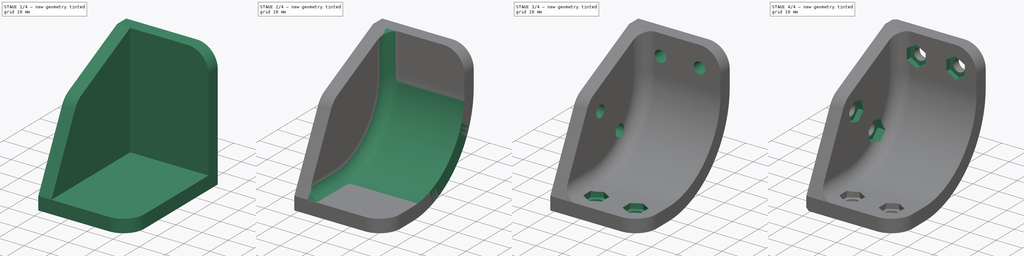
[diagram: build sequence overview — one tinted view per stage of 4, left to right]
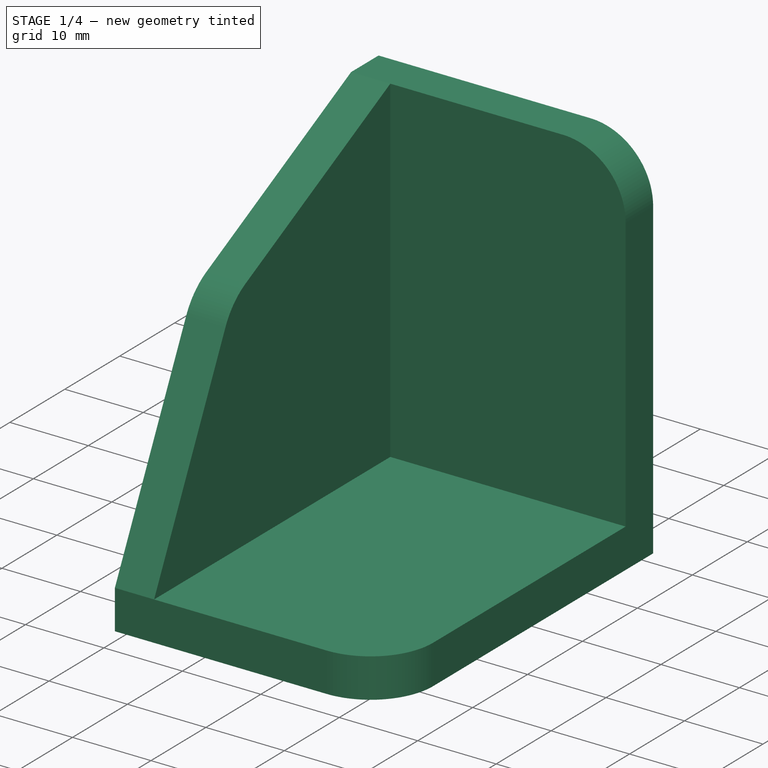
[diagram: stage 1 of 4 — iso view after this stage's code; geometry added in this stage tinted green]
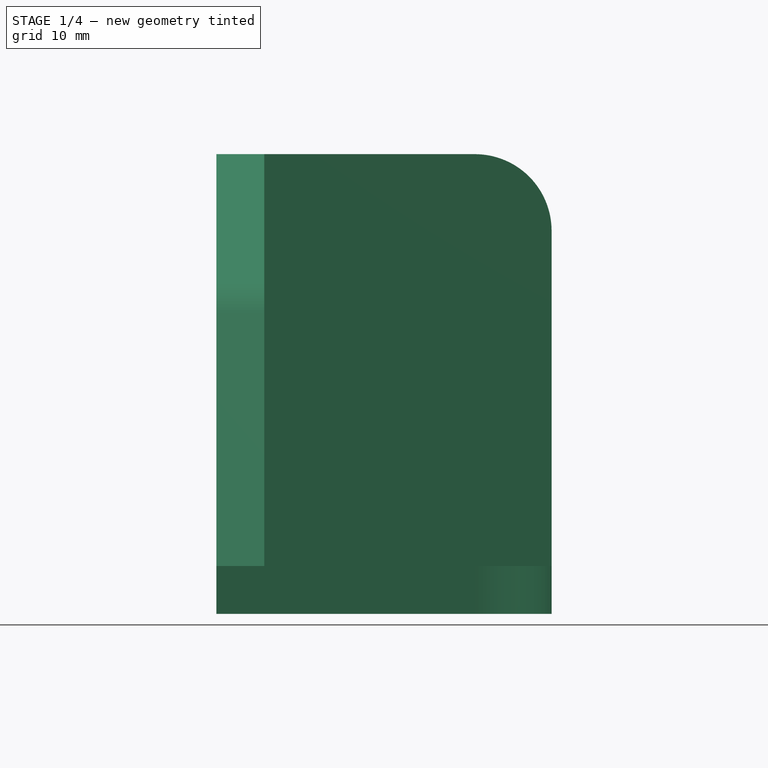
[diagram: stage 1 of 4 — front view after this stage's code; geometry added in this stage tinted green]
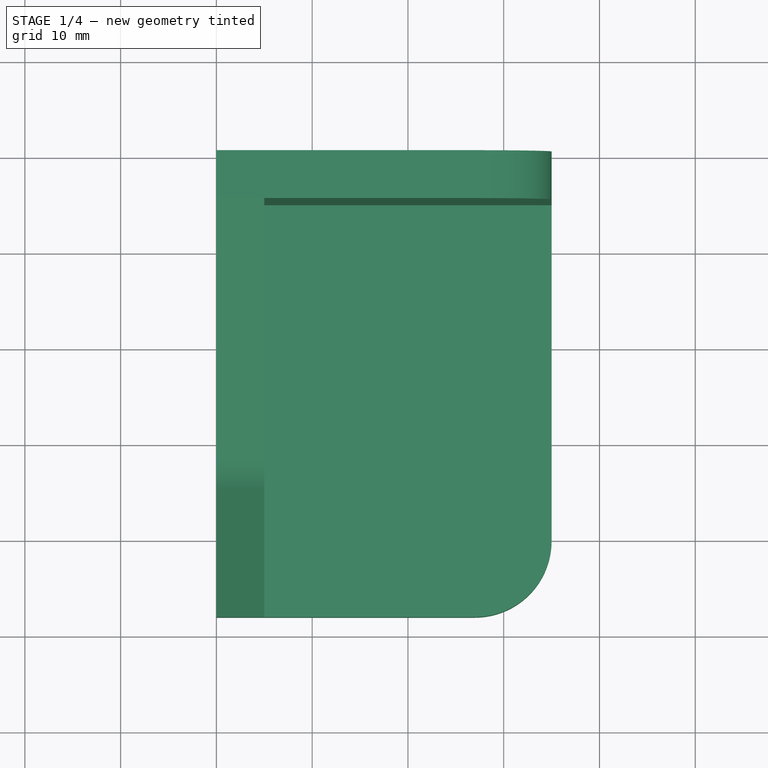
[diagram: stage 1 of 4 — top view after this stage's code; geometry added in this stage tinted green]
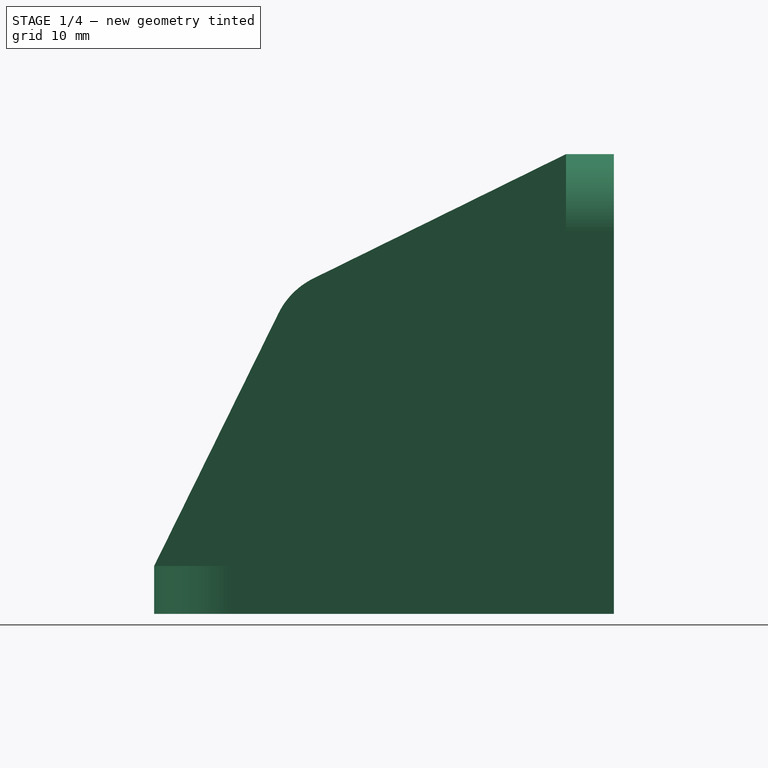
[diagram: stage 1 of 4 — right view after this stage's code; geometry added in this stage tinted green]
FCSTD DOCUMENT  (FreeCAD 0.20R29410 (Git))
Label: Corner Bend Bracket
License: All rights reserved
LicenseURL: http://en.wikipedia.org/wiki/All_rights_reserved
objects: Sketcher::SketchObject×10, PartDesign::Plane×4, PartDesign::Pocket×4, PartDesign::Pad×3, PartDesign::Hole×3, Spreadsheet::Sheet×2, PartDesign::Fillet×2, PartDesign::Chamfer×1, PartDesign::Body×1
note: 41 computed .brp shape members not serialized (recipe doc carries the construction recipe); baked Part::Feature solids carry a one-line shape summary decoded from their .brp
EXTERNAL_REF file=Tailbox.FCStd obj=Spreadsheet

FEATURE [Sketcher::SketchObject] Sketch
  FullyConstrained = true
  MapMode = 5
  Placement = pos=(0,0,0) rot=(0.57735,0.57735,0.57735;2.0944rad)
  Support = -> [YZ_Plane]
  expr: Constraints[12] = <<dims>>.BoltWallR
  expr: Constraints[20] = <<dims>>.BendR
  expr: Constraints[29] = <<dims>>.FirstHoleInset - Tailbox#<<dims>>.thickness
  expr: Constraints[3] = <<dims>>.BoltBendInset + <<dims>>.BoltWallR
  expr: Constraints[5] = <<dims>>.WallThick
  expr: Constraints[8] = <<dims>>.HoleDist
  sketch-geometry (11):
    g0: LineSegment StartX=0 StartY=48 StartZ=0 EndX=-5 EndY=48 EndZ=0
    g1: LineSegment StartX=-48 StartY=5 StartZ=0 EndX=-48 EndY=0 EndZ=0
    g2: LineSegment StartX=-48 StartY=0 StartZ=0 EndX=0 EndY=0 EndZ=0
    g3: LineSegment StartX=-17.2365 StartY=17.2365 StartZ=0 EndX=-27.8431 EndY=27.8431 EndZ=0
    g4: ArcOfCircle CenterX=-27.8431 CenterY=27.8431 CenterZ=0 NormalX=0 NormalY=0 NormalZ=1 AngleXU=0 Radius=8 StartAngle=2.02809 EndAngle=2.6843
    g5: LineSegment StartX=-48 StartY=5 StartZ=0 EndX=-35.0211 EndY=31.3753 EndZ=0
    g6: LineSegment StartX=-31.3753 StartY=35.0211 StartZ=0 EndX=-5 EndY=48 EndZ=0
    g7: LineSegment StartX=0 StartY=0 StartZ=0 EndX=0 EndY=48 EndZ=0
    g8: ArcOfCircle CenterX=-33.5 CenterY=33.5 CenterZ=0 NormalX=0 NormalY=0 NormalZ=1 AngleXU=0 Radius=33.5 StartAngle=4.71239 EndAngle=6.28319
    g9: LineSegment StartX=-17.2365 StartY=17.2365 StartZ=0 EndX=-9.81192 EndY=9.81192 EndZ=0
    g10: LineSegment StartX=-9.81192 StartY=9.81192 StartZ=0 EndX=0 EndY=0 EndZ=0
  constraints (30):
    c: PointOnObject(g1,g-1)
    c: Vertical(g1)
    c: Coincident(g1,g2)
    c: DistanceX(g2,g2) = 48
    c: Equal(g1,g0)
    c: DistanceY(g1,g1) = 5
    c: Coincident(g5,g1)
    c: Coincident(g6,g0)
    c: Distance(g3) = 15
    c: Tangent(g5,g4) = 1.5708
    c: Tangent(g6,g4) = 1.5708
    c: Coincident(g3,g4)
    c: Radius(g4) = 8
    c: Coincident(g7,g0)
    c: Perpendicular(g0,g7)
    c: Vertical(g7)
    c: Coincident(g2,g-1)
    c: Equal(g2,g7)
    c: Tangent(g8,g7) = -1.5708
    c: Tangent(g8,g2) = -1.5708
    c: Radius(g8) = 33.5
    c: Coincident(g9,g3)
    c: PointOnObject(g9,g8)
    c: Coincident(g10,g9)
    c: Coincident(g10,g2)
    c: Coincident(g2,g7)
    c: Parallel(g10,g9)
    c: Parallel(g9,g3)
    c: Angle(g10,g2) = 0.785398
    c: Distance(g9) = 10.5
FEATURE [Spreadsheet::Sheet] Spreadsheet  label="dims"
  cells = A1=FaceAngle; B1(FaceAngle)=0; A2=HoleDist; B2(HoleDist)=15; A3=FirstHoleInset; B3(FirstHoleInset)==Tailbox#<<dims>>.bolt_inset; A4=HexWidth; B4(HexWidth)=7.05; A5=MinWallThick; B5(MinWallThick)=3; A6=HexDepth; B6(HexDepth)=2; A7=WallThick; B7(WallThick)==MinWallThick + HexDepth; A8=EdgeLength; B8(EdgeLength)==Tailbox#<<dims>>.corner_radius + 2 * Tailbox#<<dims>>.corner_bolt_offset; A9=BoltWallR; B9(BoltWallR)=8; A10=CornerCut; B10(CornerCut)=1; A11=BoltBendInset; B11(BoltBendInset)==Tailbox#<<dims>>.corner_radius + Tailbox#<<dims>>.corner_bolt_offset; A12=BendR; B12(BendR)==Tailbox#<<dims>>.corner_radius - Tailbox#<<dims>>.thickness; A13=BoltEdgeInset; B13(BoltEdgeInset)==Tailbox#<<dims>>.bolt_inset
FEATURE [PartDesign::Pad] Pad  label="PanelSide"
  Direction = (1,-2e-16,3e-16)
  Length = 5
  Length2 = 10
  Placement = pos=(0,0,0) rot=(0.57735,0.57735,0.57735;2.0944rad)
  Profile = -> Sketch
  ReferenceAxis = -> Sketch [N_Axis]
  Type = 0
  expr: Length = <<dims>>.WallThick
FEATURE [Sketcher::SketchObject] Sketch001
  FullyConstrained = true
  MapMode = 5
  Support = -> [XY_Plane]
  expr: Constraints[10] = <<dims>>.BoltWallR
  expr: Constraints[13] = -<<dims>>.BoltBendInset
  expr: Constraints[14] = <<dims>>.BoltEdgeInset
  expr: Constraints[9] = <<dims>>.HoleDist
  sketch-geometry (7):
    g0: LineSegment StartX=0 StartY=0 StartZ=0 EndX=0 EndY=-48 EndZ=0
    g1: LineSegment StartX=35 StartY=0 StartZ=0 EndX=0 EndY=0 EndZ=0
    g2: LineSegment StartX=0 StartY=-40 StartZ=0 EndX=12 EndY=-40 EndZ=0
    g3: LineSegment StartX=12 StartY=-40 StartZ=0 EndX=27 EndY=-40 EndZ=0
    g4: ArcOfCircle CenterX=27 CenterY=-40 CenterZ=0 NormalX=0 NormalY=0 NormalZ=1 AngleXU=0 Radius=8 StartAngle=4.71239 EndAngle=6.28319
    g5: LineSegment StartX=0 StartY=-48 StartZ=0 EndX=27 EndY=-48 EndZ=0
    g6: LineSegment StartX=35 StartY=-40 StartZ=0 EndX=35 EndY=0 EndZ=0
  constraints (19):
    c: Coincident(g-1,g0)
    c: PointOnObject(g0,g-2)
    c: PointOnObject(g1,g-1)
    c: Coincident(g1,g0)
    c: PointOnObject(g2,g0)
    c: Horizontal(g2)
    c: Coincident(g4,g3)
    c: Tangent(g6,g4) = -1.5708
    c: Tangent(g5,g4) = -1.5708
    c: Distance(g3) = 15
    c: Radius(g4) = 8
    c: Horizontal(g3)
    c: Coincident(g3,g2)
    c: DistanceY(g2) = -40
    c: DistanceX(g2,g2) = 12
    c: Coincident(g5,g0)
    c: Horizontal(g5)
    c: Coincident(g1,g6)
    c: Vertical(g6)
FEATURE [PartDesign::Pad] Pad001  label="BentSide1"
  BaseFeature = -> Pad
  Direction = (0,0,1)
  Length = 5
  Length2 = 10
  Placement = pos=(0,0,0) rot=(0.57735,0.57735,0.57735;2.0944rad)
  Profile = -> Sketch001
  ReferenceAxis = -> Sketch001 [N_Axis]
  Type = 0
  expr: Length = <<dims>>.WallThick
FEATURE [PartDesign::Plane] DatumPlane
  Length = 60
  MapMode = 5
  Placement = pos=(0,0,0) rot=(1,0,0;1.5708rad)
  ResizeMode = 0
  Support = -> [XZ_Plane]
  Width = 60
  expr: .AttachmentOffset.Rotation.Roll = -<<dims>>.FaceAngle
FEATURE [Sketcher::SketchObject] Sketch002
  FullyConstrained = true
  MapMode = 5
  Placement = pos=(0,0,0) rot=(1,0,0;1.5708rad)
  Support = -> [DatumPlane]
  expr: Constraints[10] = <<dims>>.HoleDist
  expr: Constraints[11] = <<dims>>.BoltWallR
  expr: Constraints[14] = <<dims>>.BoltEdgeInset
  expr: Constraints[15] = <<dims>>.BoltBendInset
  sketch-geometry (7):
    g0: LineSegment StartX=0 StartY=0 StartZ=0 EndX=0 EndY=48 EndZ=0
    g1: LineSegment StartX=0 StartY=48 StartZ=0 EndX=27 EndY=48 EndZ=0
    g2: LineSegment StartX=35 StartY=0 StartZ=0 EndX=0 EndY=0 EndZ=0
    g3: LineSegment StartX=0 StartY=40 StartZ=0 EndX=12 EndY=40 EndZ=0
    g4: LineSegment StartX=12 StartY=40 StartZ=0 EndX=27 EndY=40 EndZ=0
    g5: ArcOfCircle CenterX=27 CenterY=40 CenterZ=0 NormalX=0 NormalY=0 NormalZ=1 AngleXU=0 Radius=8 StartAngle=1e-16 EndAngle=1.5708
    g6: LineSegment StartX=35 StartY=40 StartZ=0 EndX=35 EndY=0 EndZ=0
  constraints (19):
    c: Coincident(g-1,g0)
    c: Vertical(g0)
    c: Coincident(g0,g1)
    c: Horizontal(g1)
    c: Coincident(g2,g0)
    c: Horizontal(g2)
    c: PointOnObject(g3,g0)
    c: Horizontal(g3)
    c: Coincident(g5,g4)
    c: Tangent(g6,g5) = 1.5708
    c: Distance(g4) = 15
    c: Radius(g5) = 8
    c: Horizontal(g4)
    c: Coincident(g3,g4)
    c: DistanceX(g3,g3) = 12
    c: DistanceY(g3) = 40
    c: Coincident(g6,g2)
    c: Tangent(g1,g5) = 1.5708
    c: Vertical(g6)
FEATURE [PartDesign::Pad] Pad002  label="BentSide2"
  BaseFeature = -> Pad001
  Direction = (0,-1,-2e-16)
  Length = 5
  Length2 = 10
  Placement = pos=(0,0,0) rot=(0.57735,0.57735,0.57735;2.0944rad)
  Profile = -> Sketch002
  ReferenceAxis = -> Sketch002 [N_Axis]
  Refine = true
  Type = 0
  expr: Length = <<dims>>.WallThick
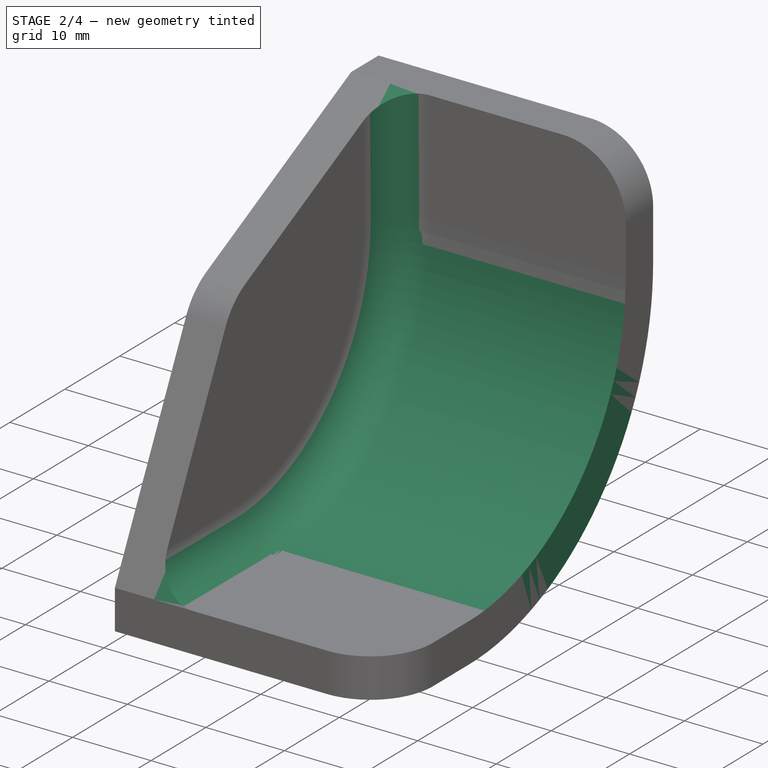
[diagram: stage 2 of 4 — iso view after this stage's code; geometry added in this stage tinted green]
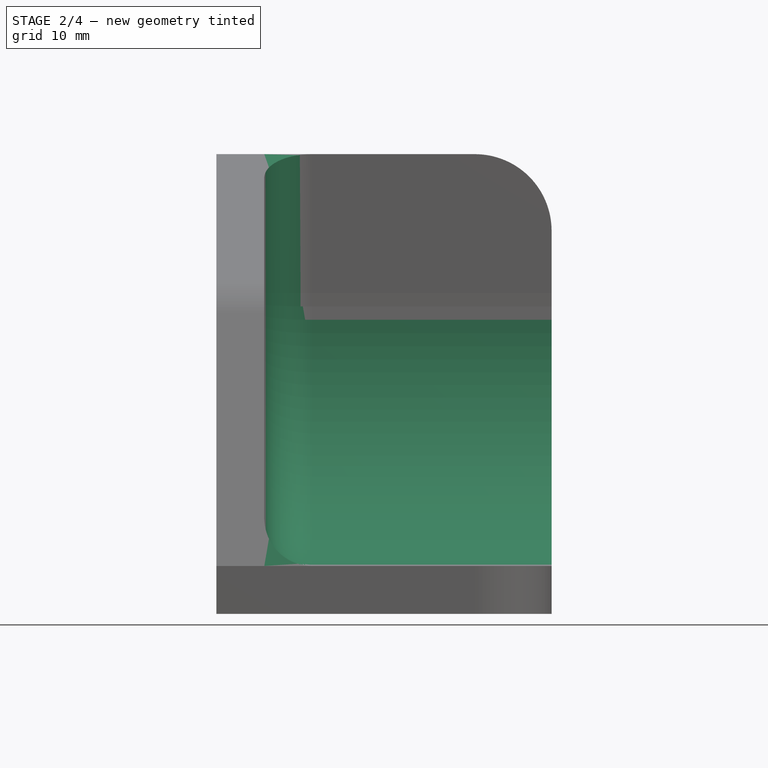
[diagram: stage 2 of 4 — front view after this stage's code; geometry added in this stage tinted green]
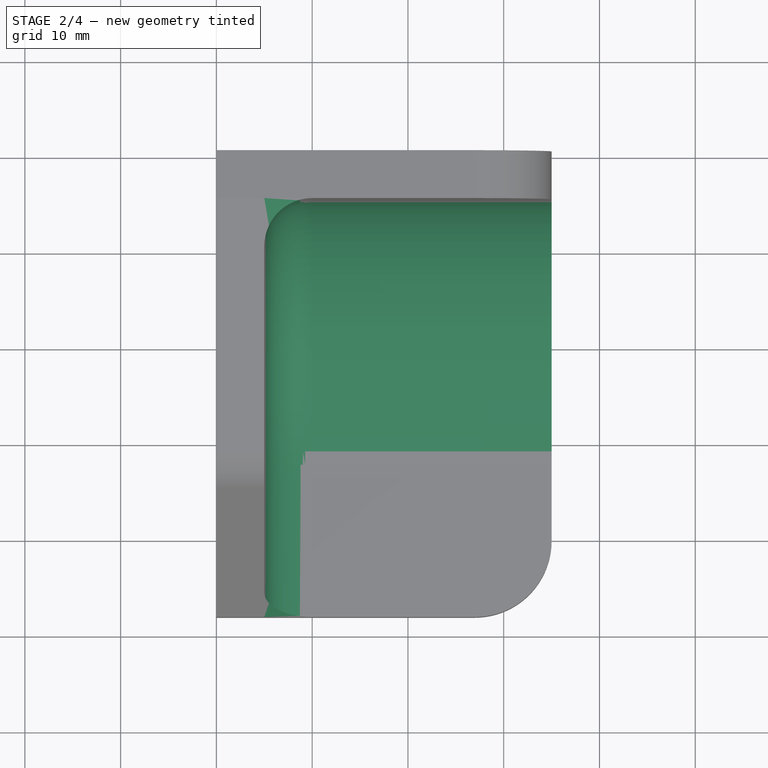
[diagram: stage 2 of 4 — top view after this stage's code; geometry added in this stage tinted green]
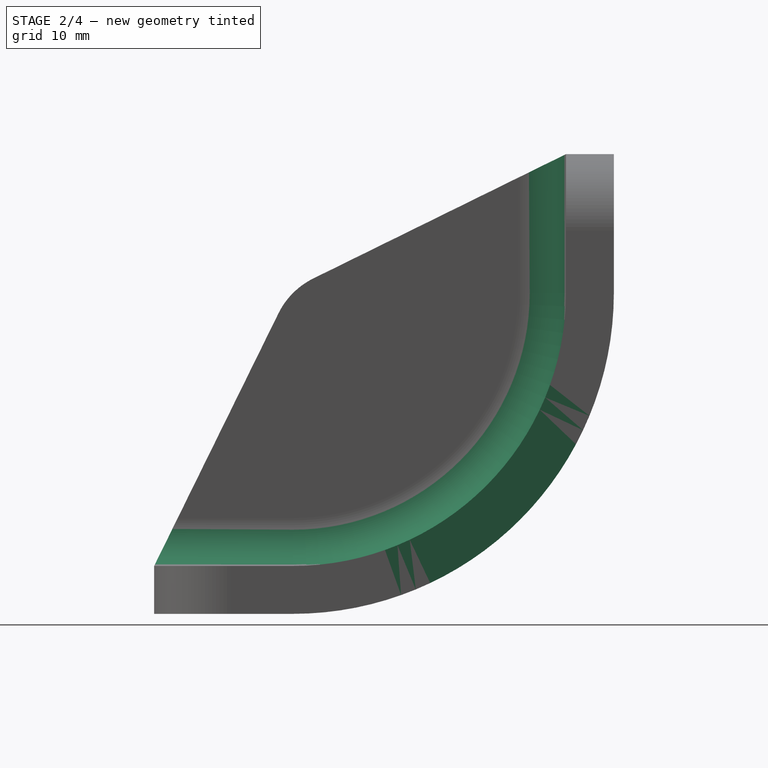
[diagram: stage 2 of 4 — right view after this stage's code; geometry added in this stage tinted green]
FEATURE [Sketcher::SketchObject] Sketch003
  FullyConstrained = false
  MapMode = 5
  Support = -> [XY_Plane]
  expr: Constraints[5] = <<dims>>.HoleDist
  expr: Constraints[7] = -<<dims>>.BoltBendInset
  expr: Constraints[8] = <<dims>>.BoltEdgeInset
  sketch-geometry (4):
    g0: Circle CenterX=12 CenterY=-40 CenterZ=0 NormalX=0 NormalY=0 NormalZ=1 AngleXU=0 Radius=1.4225
    g1: Circle CenterX=27 CenterY=-40 CenterZ=0 NormalX=0 NormalY=0 NormalZ=1 AngleXU=0 Radius=1.34335
    g2: LineSegment StartX=27 StartY=-40 StartZ=0 EndX=12 EndY=-40 EndZ=0
    g3: LineSegment StartX=0 StartY=-40 StartZ=0 EndX=12 EndY=-40 EndZ=0
  constraints (9):
    c: Coincident(g2,g1)
    c: Coincident(g2,g0)
    c: PointOnObject(g3,g-2)
    c: Coincident(g3,g0)
    c: Horizontal(g3)
    c: Distance(g2) = 15
    c: Horizontal(g2)
    c: DistanceY(g3) = -40
    c: DistanceX(g3,g3) = 12
FEATURE [Sketcher::SketchObject] Sketch005
  FullyConstrained = false
  MapMode = 5
  Placement = pos=(0,0,0) rot=(1,0,0;1.5708rad)
  Support = -> [DatumPlane]
  expr: Constraints[4] = <<dims>>.HoleDist
  expr: Constraints[6] = <<dims>>.BoltEdgeInset
  expr: Constraints[7] = <<dims>>.BoltBendInset
  sketch-geometry (4):
    g0: LineSegment StartX=0 StartY=40 StartZ=0 EndX=12 EndY=40 EndZ=0
    g1: LineSegment StartX=12 StartY=40 StartZ=0 EndX=27 EndY=40 EndZ=0
    g2: Circle CenterX=12 CenterY=40 CenterZ=0 NormalX=0 NormalY=0 NormalZ=1 AngleXU=0 Radius=2.79522
    g3: Circle CenterX=27 CenterY=40 CenterZ=0 NormalX=0 NormalY=0 NormalZ=1 AngleXU=0 Radius=3.40464
  constraints (9):
    c: PointOnObject(g0,g-2)
    c: Coincident(g2,g0)
    c: Coincident(g3,g1)
    c: Horizontal(g0)
    c: Distance(g1) = 15
    c: Horizontal(g1)
    c: DistanceX(g0,g0) = 12
    c: DistanceY(g0) = 40
    c: Coincident(g2,g1)
FEATURE [PartDesign::Plane] DatumPlane001
  AttachmentOffset = pos=(0,0,5) rot=(0,0,1;0rad)
  Length = 60
  MapMode = 5
  Placement = pos=(5,-1.1e-15,1.1e-15) rot=(0.57735,0.57735,0.57735;2.0944rad)
  ResizeMode = 0
  Support = -> [YZ_Plane]
  Width = 60
  expr: .AttachmentOffset.Base.z = <<dims>>.WallThick
FEATURE [PartDesign::Plane] DatumPlane002
  AttachmentOffset = pos=(0,0,5) rot=(0,0,1;0rad)
  Length = 60
  MapMode = 5
  Placement = pos=(0,-5,-1.1e-15) rot=(1,0,0;1.5708rad)
  ResizeMode = 0
  Support = -> [DatumPlane]
  Width = 60
  expr: .AttachmentOffset.Base.z = <<dims>>.WallThick
FEATURE [Sketcher::SketchObject] Sketch008
  FullyConstrained = true
  MapMode = 5
  Placement = pos=(0,-5,-1.1e-15) rot=(1,0,0;1.5708rad)
  Support = -> [DatumPlane002]
  expr: Constraints[40] = <<dims>>.HexWidth
  expr: Constraints[41] = <<dims>>.HoleDist
  expr: Constraints[43] = <<dims>>.BoltBendInset
  expr: Constraints[45] = <<dims>>.BoltEdgeInset
  sketch-geometry (16):
    g0: LineSegment StartX=12 StartY=40 StartZ=0 EndX=0 EndY=40 EndZ=0
    g1: LineSegment StartX=12 StartY=40 StartZ=0 EndX=27 EndY=40 EndZ=0
    g2: LineSegment StartX=12 StartY=35.9297 StartZ=0 EndX=15.525 EndY=37.9648 EndZ=0
    g3: LineSegment StartX=15.525 StartY=37.9648 StartZ=0 EndX=15.525 EndY=42.0352 EndZ=0
    g4: LineSegment StartX=15.525 StartY=42.0352 StartZ=0 EndX=12 EndY=44.0703 EndZ=0
    g5: LineSegment StartX=12 StartY=44.0703 StartZ=0 EndX=8.475 EndY=42.0352 EndZ=0
    g6: LineSegment StartX=8.475 StartY=42.0352 StartZ=0 EndX=8.475 EndY=37.9648 EndZ=0
    g7: LineSegment StartX=8.475 StartY=37.9648 StartZ=0 EndX=12 EndY=35.9297 EndZ=0
    g8: Circle CenterX=12 CenterY=40 CenterZ=0 NormalX=0 NormalY=0 NormalZ=1 AngleXU=0 Radius=4.07032
    g9: LineSegment StartX=27 StartY=35.9297 StartZ=0 EndX=30.525 EndY=37.9648 EndZ=0
    g10: LineSegment StartX=30.525 StartY=37.9648 StartZ=0 EndX=30.525 EndY=42.0352 EndZ=0
    g11: LineSegment StartX=30.525 StartY=42.0352 StartZ=0 EndX=27 EndY=44.0703 EndZ=0
    g12: LineSegment StartX=27 StartY=44.0703 StartZ=0 EndX=23.475 EndY=42.0352 EndZ=0
    g13: LineSegment StartX=23.475 StartY=42.0352 StartZ=0 EndX=23.475 EndY=37.9648 EndZ=0
    g14: LineSegment StartX=23.475 StartY=37.9648 StartZ=0 EndX=27 EndY=35.9297 EndZ=0
    g15: Circle CenterX=27 CenterY=40 CenterZ=0 NormalX=0 NormalY=0 NormalZ=1 AngleXU=0 Radius=4.07032
  constraints (39):
    c: PointOnObject(g0,g-2)
    c: Horizontal(g0)
    c: Coincident(g2,g3)
    c: Coincident(g3,g4)
    c: Coincident(g4,g5)
    c: Coincident(g5,g6)
    c: Coincident(g6,g7)
    c: Coincident(g7,g2)
    c: Equal(g2, g3-g7) x5
    c: PointOnObject(g2,g8)
    c: PointOnObject(g3,g8)
    c: PointOnObject(g4,g8)
    c: PointOnObject(g5,g8)
    c: PointOnObject(g6,g8)
    c: PointOnObject(g7,g8)
    c: Coincident(g9,g10)
    c: Coincident(g10,g11)
    c: Coincident(g11,g12)
    c: Coincident(g12,g13)
    c: Coincident(g13,g14)
    c: Coincident(g14,g9)
    c: Equal(g9, g10-g14) x5
    c: PointOnObject(g9,g15)
    c: PointOnObject(g10,g15)
    c: PointOnObject(g11,g15)
    c: PointOnObject(g12,g15)
    c: PointOnObject(g13,g15)
    c: PointOnObject(g14,g15)
    c: Coincident(g15,g1)
    c: Perpendicular(g1,g13)
    c: Perpendicular(g1,g3)
    c: Equal(g8,g15)
    c: Distance(g11,g9) = 7.05
    c: Distance(g1) = 15
    c: Coincident(g0,g1)
    c: DistanceY(g0) = 40
    c: Coincident(g8,g0)
    c: DistanceX(g0,g0) = 12
    c: Horizontal(g1)
FEATURE [PartDesign::Plane] DatumPlane003
  AttachmentOffset = pos=(0,0,5) rot=(0,0,1;0rad)
  Length = 60
  MapMode = 5
  Placement = pos=(0,0,5) rot=(0,0,1;0rad)
  ResizeMode = 0
  Support = -> [XY_Plane]
  Width = 60
  expr: .AttachmentOffset.Base.z = <<dims>>.WallThick
FEATURE [Sketcher::SketchObject] Sketch006
  FullyConstrained = true
  MapMode = 5
  Placement = pos=(0,0,5) rot=(0,0,1;0rad)
  Support = -> [DatumPlane003]
  expr: Constraints[37] = <<dims>>.HoleDist
  expr: Constraints[41] = <<dims>>.HexWidth
  expr: Constraints[44] = -<<dims>>.BoltBendInset
  expr: Constraints[45] = <<dims>>.BoltEdgeInset
  sketch-geometry (16):
    g0: LineSegment StartX=12 StartY=-44.0703 StartZ=0 EndX=15.525 EndY=-42.0352 EndZ=0
    g1: LineSegment StartX=15.525 StartY=-42.0352 StartZ=0 EndX=15.525 EndY=-37.9648 EndZ=0
    g2: LineSegment StartX=15.525 StartY=-37.9648 StartZ=0 EndX=12 EndY=-35.9297 EndZ=0
    g3: LineSegment StartX=12 StartY=-35.9297 StartZ=0 EndX=8.475 EndY=-37.9648 EndZ=0
    g4: LineSegment StartX=8.475 StartY=-37.9648 StartZ=0 EndX=8.475 EndY=-42.0352 EndZ=0
    g5: LineSegment StartX=8.475 StartY=-42.0352 StartZ=0 EndX=12 EndY=-44.0703 EndZ=0
    g6: Circle CenterX=12 CenterY=-40 CenterZ=0 NormalX=0 NormalY=0 NormalZ=1 AngleXU=0 Radius=4.07032
    g7: LineSegment StartX=30.525 StartY=-42.0352 StartZ=0 EndX=30.525 EndY=-37.9648 EndZ=0
    g8: LineSegment StartX=30.525 StartY=-37.9648 StartZ=0 EndX=27 EndY=-35.9297 EndZ=0
    g9: LineSegment StartX=27 StartY=-35.9297 StartZ=0 EndX=23.475 EndY=-37.9648 EndZ=0
    g10: LineSegment StartX=23.475 StartY=-37.9648 StartZ=0 EndX=23.475 EndY=-42.0352 EndZ=0
    g11: LineSegment StartX=23.475 StartY=-42.0352 StartZ=0 EndX=27 EndY=-44.0703 EndZ=0
    g12: LineSegment StartX=27 StartY=-44.0703 StartZ=0 EndX=30.525 EndY=-42.0352 EndZ=0
    g13: Circle CenterX=27 CenterY=-40 CenterZ=0 NormalX=0 NormalY=0 NormalZ=1 AngleXU=0 Radius=4.07032
    g14: LineSegment StartX=12 StartY=-40 StartZ=0 EndX=0 EndY=-40 EndZ=0
    g15: LineSegment StartX=12 StartY=-40 StartZ=0 EndX=27 EndY=-40 EndZ=0
  constraints (39):
    c: Coincident(g0,g1)
    c: Coincident(g1,g2)
    c: Coincident(g2,g3)
    c: Coincident(g3,g4)
    c: Coincident(g4,g5)
    c: Coincident(g5,g0)
    c: Equal(g0, g1-g5) x5
    c: PointOnObject(g0,g6)
    c: PointOnObject(g1,g6)
    c: PointOnObject(g2,g6)
    c: PointOnObject(g3,g6)
    c: PointOnObject(g4,g6)
    c: PointOnObject(g5,g6)
    c: Coincident(g7,g8)
    c: Coincident(g8,g9)
    c: Coincident(g9,g10)
    c: Coincident(g10,g11)
    c: Coincident(g11,g12)
    c: Coincident(g12,g7)
    c: Equal(g7, g8-g12) x5
    c: PointOnObject(g7,g13)
    c: PointOnObject(g8,g13)
    c: PointOnObject(g9,g13)
    c: PointOnObject(g10,g13)
    c: PointOnObject(g11,g13)
    c: PointOnObject(g12,g13)
    c: PointOnObject(g14,g-2)
    c: Horizontal(g14)
    c: Coincident(g15,g13)
    c: Distance(g15) = 15
    c: Perpendicular(g15,g10)
    c: Perpendicular(g15,g1)
    c: Equal(g6,g13)
    c: Distance(g7,g9) = 7.05
    c: Coincident(g14,g6)
    c: Coincident(g15,g6)
    c: DistanceY(g14) = -40
    c: DistanceX(g14,g14) = 12
    c: Horizontal(g15)
FEATURE [PartDesign::Fillet] Fillet003
  Base = -> Pad002 [Edge8]
  BaseFeature = -> Pad002
  Placement = pos=(0,0,0) rot=(0.57735,0.57735,0.57735;2.0944rad)
  Radius = 28.5
  SupportTransform = false
  UseAllEdges = false
  expr: Radius = <<dims>>.BendR - <<dims>>.WallThick
FEATURE [Sketcher::SketchObject] Sketch009
  FullyConstrained = true
  MapMode = 5
  Placement = pos=(0,0,0) rot=(0.57735,0.57735,0.57735;2.0944rad)
  Support = -> [YZ_Plane]
  expr: Constraints[6] = <<dims>>.BendR
  sketch-geometry (3):
    g0: ArcOfCircle CenterX=-33.5 CenterY=33.5 CenterZ=0 NormalX=0 NormalY=0 NormalZ=1 AngleXU=0 Radius=33.5 StartAngle=4.71239 EndAngle=6.28319
    g1: LineSegment StartX=0 StartY=33.5 StartZ=0 EndX=0 EndY=0 EndZ=0
    g2: LineSegment StartX=-33.5 StartY=0 StartZ=0 EndX=0 EndY=0 EndZ=0
  constraints (7):
    c: PointOnObject(g0,g-1)
    c: Coincident(g1,g-1)
    c: Coincident(g2,g-1)
    c: Vertical(g1)
    c: Tangent(g1,g0) = 1.5708
    c: Tangent(g2,g0) = -1.5708
    c: Radius(g0) = 33.5
FEATURE [PartDesign::Pocket] Pocket003
  BaseFeature = -> Fillet003
  Direction = (-1,2e-16,-3e-16)
  Length = 5
  Length2 = 5
  Placement = pos=(0,0,0) rot=(0.57735,0.57735,0.57735;2.0944rad)
  Profile = -> Sketch009
  ReferenceAxis = -> Sketch009 [N_Axis]
  Reversed = true
  Type = 1
FEATURE [PartDesign::Fillet] Fillet
  Base = -> Pocket003 [Edge14]
  BaseFeature = -> Pocket003
  Placement = pos=(0,0,0) rot=(0.57735,0.57735,0.57735;2.0944rad)
  Radius = 5
  SupportTransform = false
  UseAllEdges = false
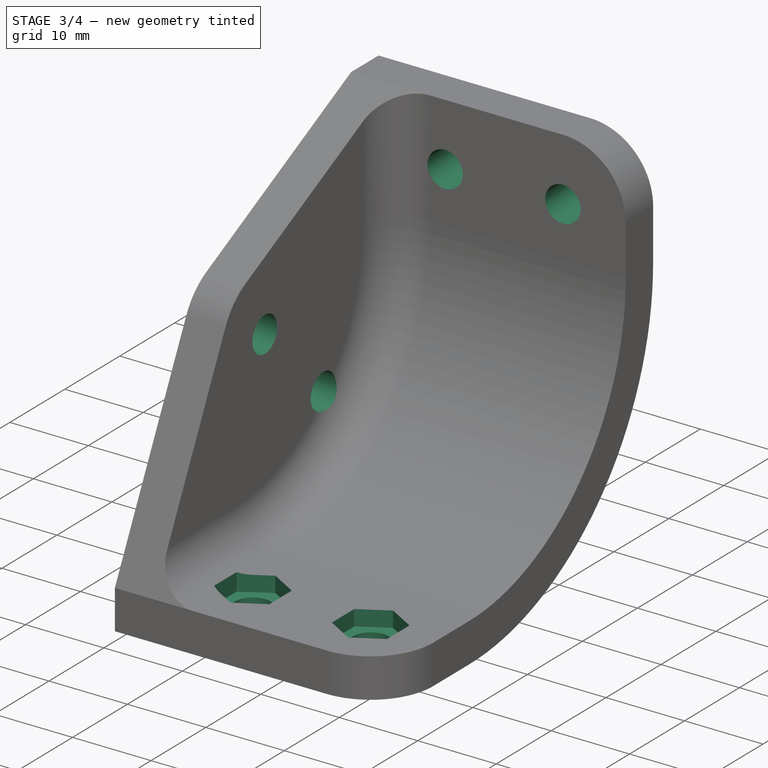
[diagram: stage 3 of 4 — iso view after this stage's code; geometry added in this stage tinted green]
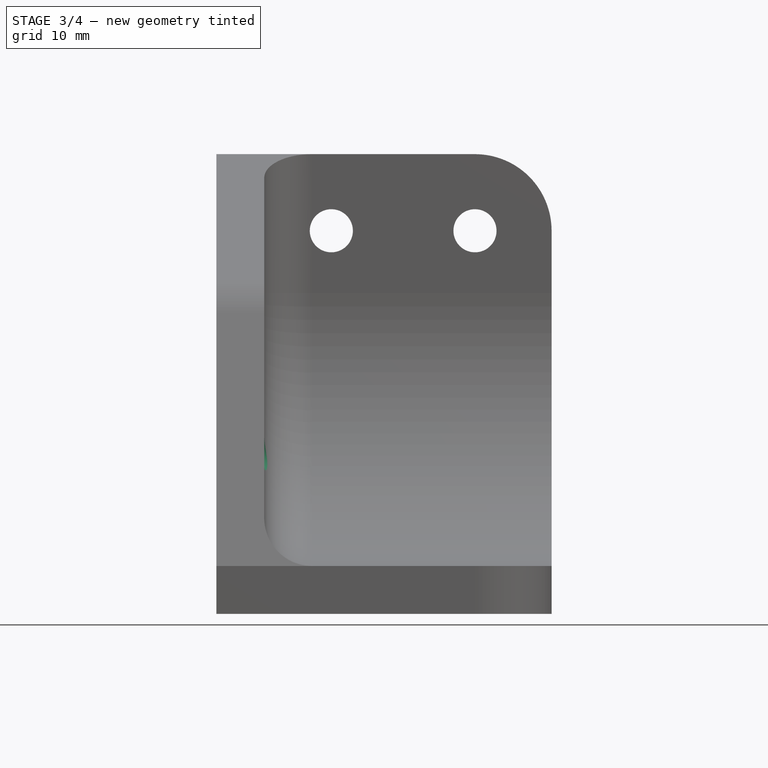
[diagram: stage 3 of 4 — front view after this stage's code; geometry added in this stage tinted green]
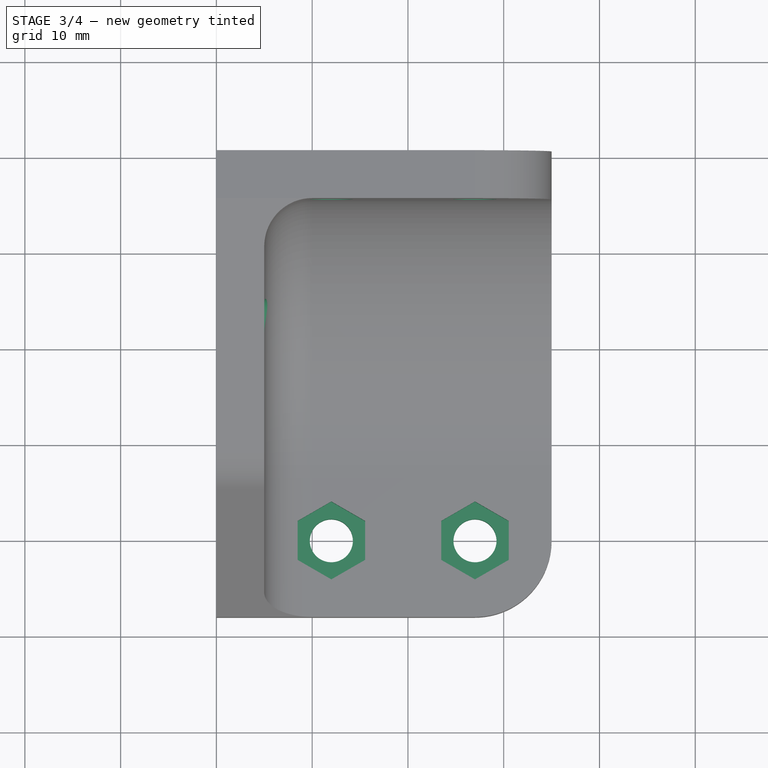
[diagram: stage 3 of 4 — top view after this stage's code; geometry added in this stage tinted green]
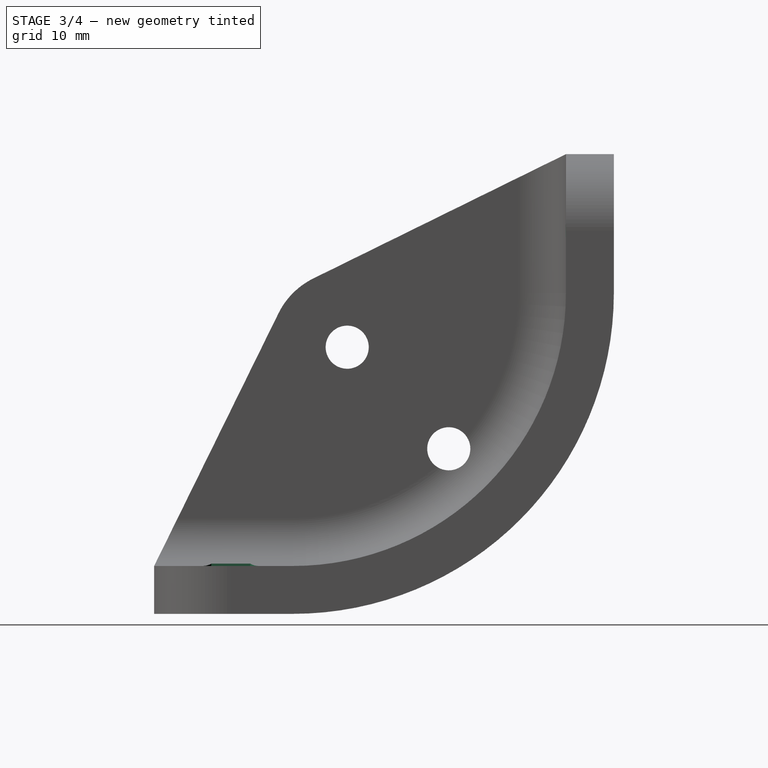
[diagram: stage 3 of 4 — right view after this stage's code; geometry added in this stage tinted green]
FEATURE [PartDesign::Hole] Hole
  BaseFeature = -> Fillet
  CustomThreadClearance = 0
  Depth = 83.6027
  DepthType = 1
  Diameter = 4.5
  DrillForDepth = false
  DrillPoint = 1
  DrillPointAngle = 118
  HoleCutCountersinkAngle = 90
  HoleCutCustomValues = false
  HoleCutDepth = 0
  HoleCutDiameter = 6.1
  HoleCutType = 0
  ModelThread = false
  Placement = pos=(0,0,0) rot=(0.57735,0.57735,0.57735;2.0944rad)
  Profile = -> Sketch003
  Reversed = true
  Tapered = false
  TaperedAngle = 90
  ThreadClass = 0
  ThreadDepth = 83.6027
  ThreadDepthType = 0
  ThreadDirection = 0
  ThreadFit = 0
  ThreadSize = 11
  ThreadType = 1
  Threaded = false
  UseCustomThreadClearance = false
FEATURE [Sketcher::SketchObject] Sketch004
  ExternalGeometry = -> [Hole]
  FullyConstrained = false
  MapMode = 5
  Placement = pos=(0,0,0) rot=(0.57735,0.57735,0.57735;2.0944rad)
  Support = -> [YZ_Plane]
  expr: Constraints[8] = <<dims>>.FirstHoleInset - Tailbox#<<dims>>.thickness
  expr: Constraints[9] = <<dims>>.HoleDist
  sketch-geometry (5):
    g0: Circle CenterX=-17.2365 CenterY=17.2365 CenterZ=0 NormalX=0 NormalY=0 NormalZ=1 AngleXU=0 Radius=3.15255
    g1: Circle CenterX=-27.8431 CenterY=27.8431 CenterZ=0 NormalX=0 NormalY=0 NormalZ=1 AngleXU=0 Radius=1.56795
    g2: LineSegment StartX=-17.2365 StartY=17.2365 StartZ=0 EndX=-27.8431 EndY=27.8431 EndZ=0
    g3: LineSegment StartX=0 StartY=0 StartZ=0 EndX=-9.81192 EndY=9.81192 EndZ=0
    g4: LineSegment StartX=-9.81192 StartY=9.81192 StartZ=0 EndX=-17.2365 EndY=17.2365 EndZ=0
  constraints (11):
    c: Coincident(g2,g1)
    c: Coincident(g3,g-1)
    c: Coincident(g4,g3)
    c: Coincident(g0,g2)
    c: Coincident(g0,g4)
    c: Parallel(g2,g4)
    c: Parallel(g4,g3)
    c: PointOnObject(g3,g-3)
    c: Distance(g4) = 10.5
    c: Distance(g2) = 15
    c: PointOnObject(g-3,g2)
FEATURE [PartDesign::Hole] Hole001
  BaseFeature = -> Hole
  CustomThreadClearance = 0
  Depth = 88.6705
  DepthType = 1
  Diameter = 4.5
  DrillForDepth = false
  DrillPoint = 1
  DrillPointAngle = 118
  HoleCutCountersinkAngle = 90
  HoleCutCustomValues = false
  HoleCutDepth = 0
  HoleCutDiameter = 6.1
  HoleCutType = 0
  ModelThread = false
  Placement = pos=(0,0,0) rot=(0.57735,0.57735,0.57735;2.0944rad)
  Profile = -> Sketch004
  Reversed = true
  Tapered = false
  TaperedAngle = 90
  ThreadClass = 0
  ThreadDepth = 88.6705
  ThreadDepthType = 0
  ThreadDirection = 0
  ThreadFit = 0
  ThreadSize = 11
  ThreadType = 1
  Threaded = false
  UseCustomThreadClearance = false
FEATURE [PartDesign::Hole] Hole002
  BaseFeature = -> Hole001
  CustomThreadClearance = 0
  Depth = 88.6705
  DepthType = 1
  Diameter = 4.5
  DrillForDepth = false
  DrillPoint = 1
  DrillPointAngle = 118
  HoleCutCountersinkAngle = 90
  HoleCutCustomValues = false
  HoleCutDepth = 0
  HoleCutDiameter = 6.1
  HoleCutType = 0
  ModelThread = false
  Placement = pos=(0,0,0) rot=(0.57735,0.57735,0.57735;2.0944rad)
  Profile = -> Sketch005
  Reversed = true
  Tapered = false
  TaperedAngle = 90
  ThreadClass = 0
  ThreadDepth = 88.6705
  ThreadDepthType = 0
  ThreadDirection = 0
  ThreadFit = 0
  ThreadSize = 11
  ThreadType = 1
  Threaded = false
  UseCustomThreadClearance = false
FEATURE [PartDesign::Pocket] Pocket
  BaseFeature = -> Hole002
  Direction = (0,0,-1)
  Length = 4
  Length2 = 5
  Midplane = true
  Placement = pos=(0,0,0) rot=(0.57735,0.57735,0.57735;2.0944rad)
  Profile = -> Sketch006
  Type = 0
  expr: Length = 2 * <<dims>>.HexDepth
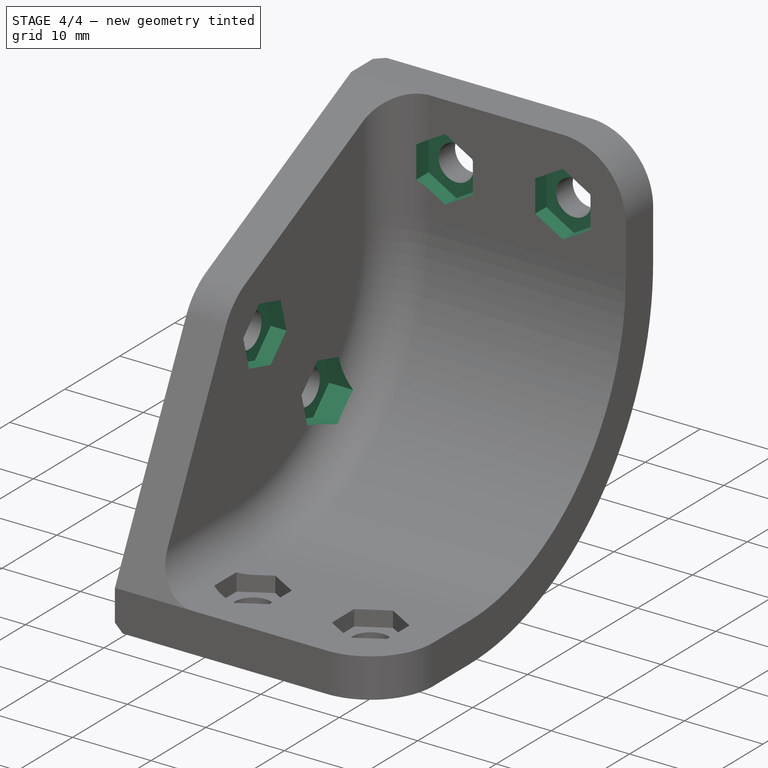
[diagram: stage 4 of 4 — iso view after this stage's code; geometry added in this stage tinted green]
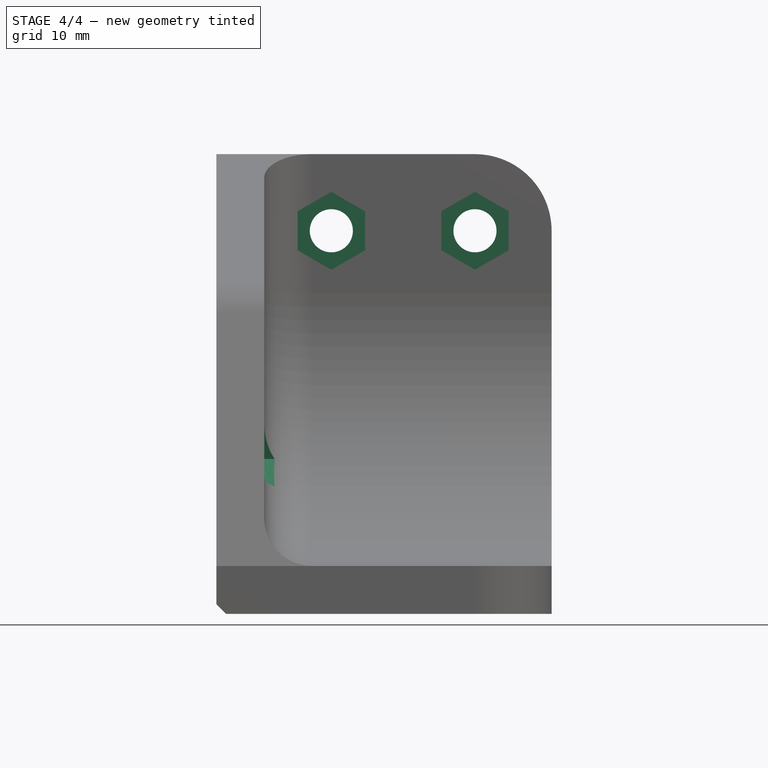
[diagram: stage 4 of 4 — front view after this stage's code; geometry added in this stage tinted green]
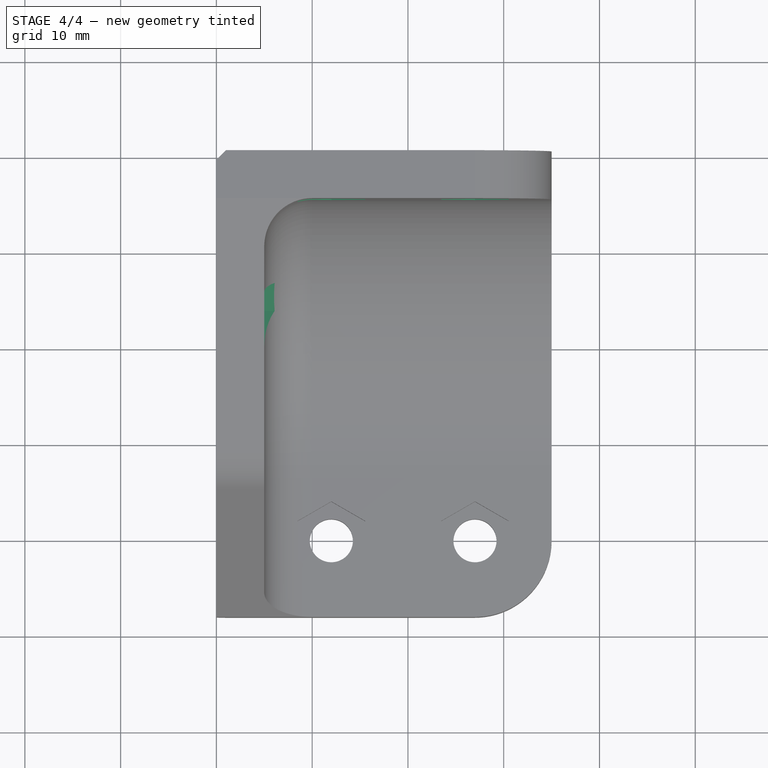
[diagram: stage 4 of 4 — top view after this stage's code; geometry added in this stage tinted green]
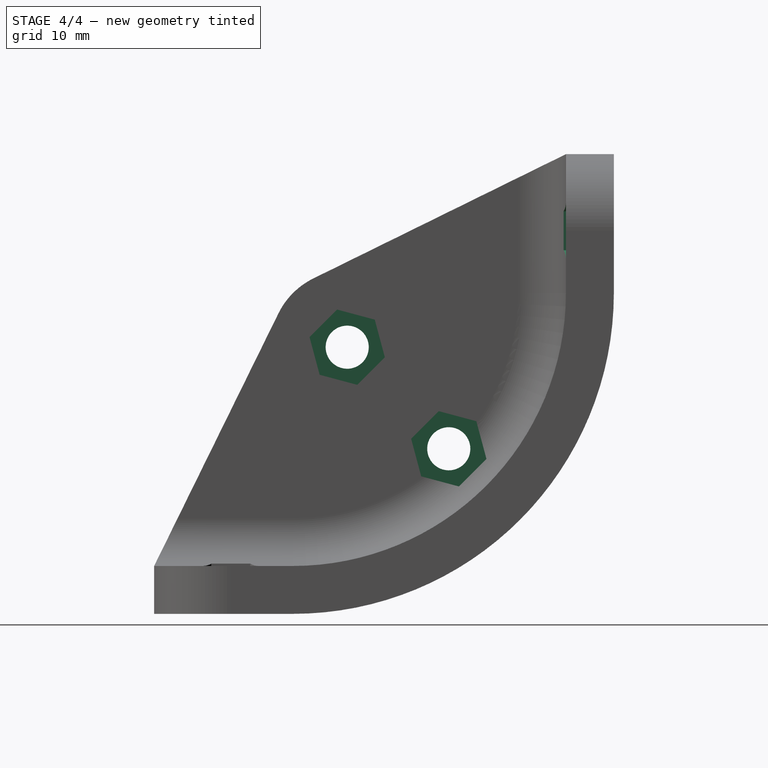
[diagram: stage 4 of 4 — right view after this stage's code; geometry added in this stage tinted green]
FEATURE [Sketcher::SketchObject] Sketch007
  ExternalGeometry = -> [Pocket]
  FullyConstrained = true
  MapMode = 5
  Placement = pos=(5,-1.1e-15,1.1e-15) rot=(0.57735,0.57735,0.57735;2.0944rad)
  Support = -> [DatumPlane001]
  expr: Constraints[34] = <<dims>>.HexWidth
  sketch-geometry (15):
    g0: LineSegment StartX=-31.7748 StartY=28.8966 StartZ=0 EndX=-30.7213 EndY=24.965 EndZ=0
    g1: LineSegment StartX=-30.7213 StartY=24.965 StartZ=0 EndX=-26.7897 EndY=23.9115 EndZ=0
    g2: LineSegment StartX=-26.7897 StartY=23.9115 StartZ=0 EndX=-23.9115 EndY=26.7897 EndZ=0
    g3: LineSegment StartX=-23.9115 StartY=26.7897 StartZ=0 EndX=-24.965 EndY=30.7213 EndZ=0
    g4: LineSegment StartX=-24.965 StartY=30.7213 StartZ=0 EndX=-28.8966 EndY=31.7748 EndZ=0
    g5: LineSegment StartX=-28.8966 StartY=31.7748 StartZ=0 EndX=-31.7748 EndY=28.8966 EndZ=0
    g6: Circle CenterX=-27.8431 CenterY=27.8431 CenterZ=0 NormalX=0 NormalY=0 NormalZ=1 AngleXU=0 Radius=4.07032
    g7: LineSegment StartX=-21.1682 StartY=18.29 StartZ=0 EndX=-20.1147 EndY=14.3584 EndZ=0
    g8: LineSegment StartX=-20.1147 StartY=14.3584 StartZ=0 EndX=-16.1831 EndY=13.3049 EndZ=0
    g9: LineSegment StartX=-16.1831 StartY=13.3049 StartZ=0 EndX=-13.3049 EndY=16.1831 EndZ=0
    g10: LineSegment StartX=-13.3049 StartY=16.1831 StartZ=0 EndX=-14.3584 EndY=20.1147 EndZ=0
    g11: LineSegment StartX=-14.3584 StartY=20.1147 StartZ=0 EndX=-18.29 EndY=21.1682 EndZ=0
    g12: LineSegment StartX=-18.29 StartY=21.1682 StartZ=0 EndX=-21.1682 EndY=18.29 EndZ=0
    g13: Circle CenterX=-17.2365 CenterY=17.2365 CenterZ=0 NormalX=0 NormalY=0 NormalZ=1 AngleXU=0 Radius=4.07032
    g14: LineSegment StartX=0 StartY=0 StartZ=0 EndX=-17.2365 EndY=17.2365 EndZ=0
  constraints (34):
    c: Coincident(g0,g1)
    c: Coincident(g1,g2)
    c: Coincident(g2,g3)
    c: Coincident(g3,g4)
    c: Coincident(g4,g5)
    c: Coincident(g5,g0)
    c: Equal(g0, g1-g5) x5
    c: PointOnObject(g0,g6)
    c: PointOnObject(g1,g6)
    c: PointOnObject(g2,g6)
    c: PointOnObject(g3,g6)
    c: PointOnObject(g4,g6)
    c: PointOnObject(g5,g6)
    c: Coincident(g7,g8)
    c: Coincident(g8,g9)
    c: Coincident(g9,g10)
    c: Coincident(g10,g11)
    c: Coincident(g11,g12)
    c: Coincident(g12,g7)
    c: Equal(g7, g8-g12) x5
    c: PointOnObject(g7,g13)
    c: PointOnObject(g8,g13)
    c: PointOnObject(g9,g13)
    c: PointOnObject(g10,g13)
    c: PointOnObject(g11,g13)
    c: PointOnObject(g12,g13)
    c: Distance(g4,g2) = 7.05
    c: Equal(g13,g6)
    c: Coincident(g6,g-3)
    c: Coincident(g13,g-4)
    c: Coincident(g14,g13)
    c: Perpendicular(g14,g12)
    c: Parallel(g12,g2)
    c: Coincident(g14,g-1)
FEATURE [PartDesign::Pocket] Pocket001
  BaseFeature = -> Pocket
  Direction = (-1,1e-16,-1e-16)
  Length = 4
  Length2 = 5
  Midplane = true
  Placement = pos=(0,0,0) rot=(0.57735,0.57735,0.57735;2.0944rad)
  Profile = -> Sketch007
  Type = 0
  expr: Length = <<dims>>.HexDepth * 2
FEATURE [PartDesign::Pocket] Pocket002
  BaseFeature = -> Pocket001
  Direction = (0,1,2e-16)
  Length = 4
  Length2 = 5
  Midplane = true
  Placement = pos=(0,0,0) rot=(0.57735,0.57735,0.57735;2.0944rad)
  Profile = -> Sketch008
  Type = 0
  expr: Length = 2 * <<dims>>.HexDepth
FEATURE [PartDesign::Chamfer] Chamfer
  Angle = 45
  Base = -> Pocket002 [Edge90]
  BaseFeature = -> Pocket002
  ChamferType = 0
  FlipDirection = false
  Placement = pos=(0,0,0) rot=(0.57735,0.57735,0.57735;2.0944rad)
  Size = 1
  Size2 = 1
  SupportTransform = false
  UseAllEdges = false
FEATURE [PartDesign::Body] Body  label="Corner Angled"
  Group = -> [Sketch,Pad,Sketch001,Pad001,DatumPlane,Sketch002,Pad002,Fillet003,Sketch009,Pocket003,Fillet,Sketch003,Hole,Sketch004,Hole001,Sketch005,Hole002,DatumPlane003,Sketch006,Pocket,DatumPlane001,Sketch007,Pocket001,DatumPlane002,Sketch008,Pocket002,Chamfer]
  Origin = -> Origin
  Tip = -> Chamfer
FEATURE [Spreadsheet::Sheet] _PARTINFO_  label="#PARTINFO#"
  cells = A1=IDENTNO; A2=DESCRIPTION; B2=Corner Bend Bracket; A3=SUPPLIER; A4=SUPP.IDENTNO; A5=SUPP.DESCRIPTION; A6=(FILENAME)
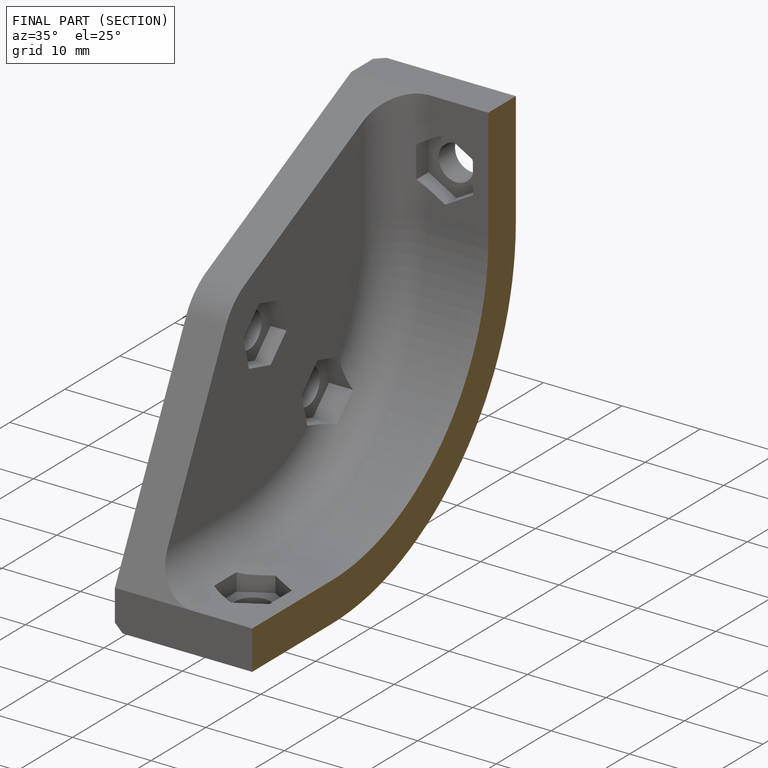
[diagram: finished part — half-section view (interior)]
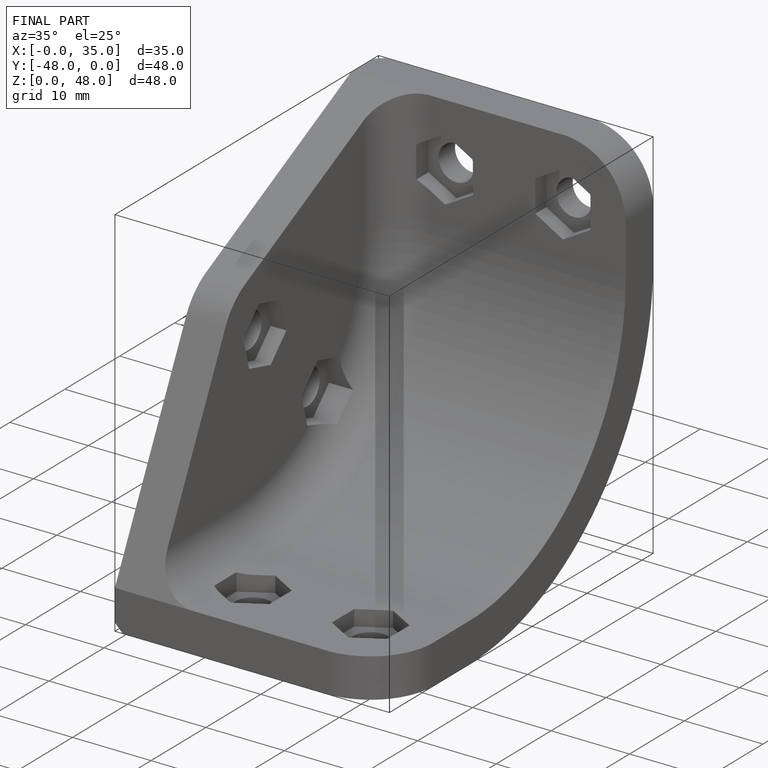
[diagram: finished part — iso view with bounding-box wireframe]
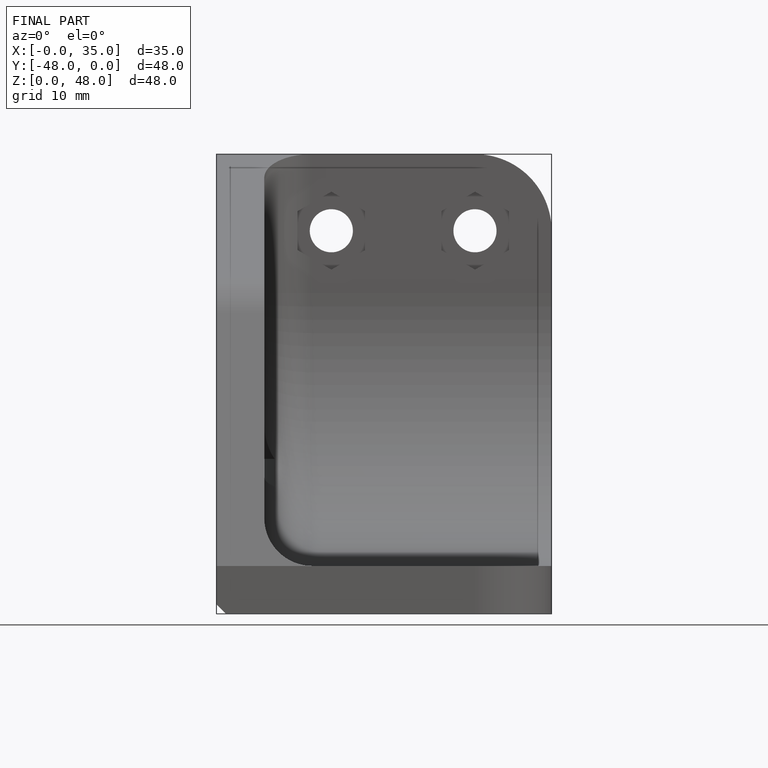
[diagram: finished part — front view with bounding-box wireframe]
